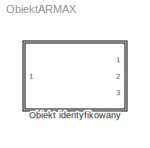
MODEL ObiektARMAX
KIND model
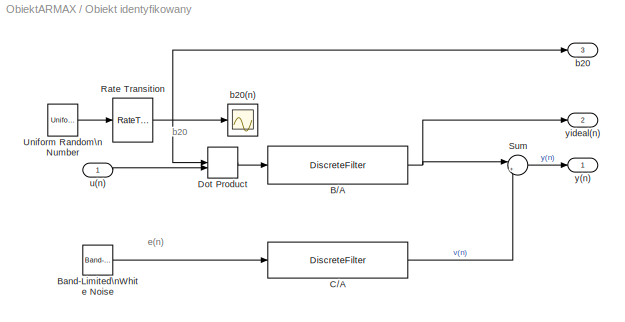
BLOCK [SubSystem] Obiekt identyfikowany
  Ports = [1, 3]
  RequestExecContextInheritance = off
  SID = 1
BLOCK [DiscreteFilter] Obiekt identyfikowany/B//A
  Denominator = [1 -0.8 -0.1]
  InputPortMap = u0
  Numerator = [0 0 1]
  Ports = [1, 1]
  SID = 3
  SampleTime = Tp
BLOCK [Reference] Obiekt identyfikowany/Band-Limited\nWhite Noise  REF=simulink/Sources/Band-Limited\nWhite Noise
  Cov = [0.001]
  Ports = [0, 1]
  SID = 4
  SourceBlock = simulink/Sources/Band-Limited\nWhite Noise
  SourceProductBaseCode = SL
  SourceProductName = Simulink
  SourceType = Band-Limited White Noise.
  Ts = Tp
  VectorParams1D = on
  seed = [23341]
BLOCK [DiscreteFilter] Obiekt identyfikowany/C//A
  Denominator = [1 -0.8 -0.1]
  InputPortMap = u0
  Numerator = [1 c10]
  Ports = [1, 1]
  SID = 5
  SampleTime = Tp
BLOCK [DotProduct] Obiekt identyfikowany/Dot Product
  OutDataTypeStr = Inherit: Inherit via internal rule
  SID = 6
BLOCK [RateTransition] Obiekt identyfikowany/Rate Transition
  InitialCondition = 0.5
  OutPortSampleTime = Tp
  SID = 7
BLOCK [Sum] Obiekt identyfikowany/Sum
  IconShape = round
  InputSameDT = off
  Inputs = |++
  OutDataTypeStr = Inherit: Inherit via internal rule
  Ports = [2, 1]
  SID = 8
BLOCK [UniformRandomNumber] Obiekt identyfikowany/Uniform Random\nNumber
  Maximum = 0.5
  Minimum = 0
  SID = 9
  SampleTime = Td
BLOCK [Outport] Obiekt identyfikowany/b20
  IconDisplay = Port number
  Port = 3
  SID = 13
BLOCK [Scope] Obiekt identyfikowany/b20(n)
  Floating = off
  NumInputPorts = 1
  Ports = [1]
  SID = 10
  ScopeSpecificationString = C++SS(StrPVP('Location','[6, 53, 1030, 743]'),StrPVP('Open','off'),MxPVP('AxesTitles',53,'struct(''axes1'',''%<SignalLabel>'')'),StrPVP('TimeRange','1000'),StrPVP('YMin','0'),StrPVP('YMax','0.5'),StrPVP('SaveName','ScopeData8'),StrPVP('DataFormat','StructureWithTime'),StrPVP('MaxDataPoints','50000'),StrPVP('BlockParamSampleTime','0'),StrPVP('LimitDataPoints','on'),StrPVP('Decimation','1'),StrPVP('...<+30ch>
BLOCK [Inport] Obiekt identyfikowany/u(n)
  IconDisplay = Port number
  SID = 2
BLOCK [Outport] Obiekt identyfikowany/y(n)
  IconDisplay = Port number
  SID = 11
BLOCK [Outport] Obiekt identyfikowany/yideal(n)
  IconDisplay = Port number
  Port = 2
  SID = 12
ANNOTATION Obiekt identyfikowany: b20
ANNOTATION Obiekt identyfikowany: e(n)
NET Obiekt identyfikowany/B//A:1 -> Obiekt identyfikowany/Sum:1, Obiekt identyfikowany/yideal(n):1
LINE Obiekt identyfikowany/Band-Limited\nWhite Noise:1 -> Obiekt identyfikowany/C//A:1
LINE Obiekt identyfikowany/C//A:1 -> Obiekt identyfikowany/Sum:2
LINE Obiekt identyfikowany/Dot Product:1 -> Obiekt identyfikowany/B//A:1
NET Obiekt identyfikowany/Rate Transition:1 -> Obiekt identyfikowany/Dot Product:1, Obiekt identyfikowany/b20(n):1, Obiekt identyfikowany/b20:1
LINE Obiekt identyfikowany/Sum:1 -> Obiekt identyfikowany/y(n):1
LINE Obiekt identyfikowany/Uniform Random\nNumber:1 -> Obiekt identyfikowany/Rate Transition:1
LINE Obiekt identyfikowany/u(n):1 -> Obiekt identyfikowany/Dot Product:2
note: NET lines group one-source signal fan-out (src -> all destinations, sorted); 1:1 wires keep LINE
